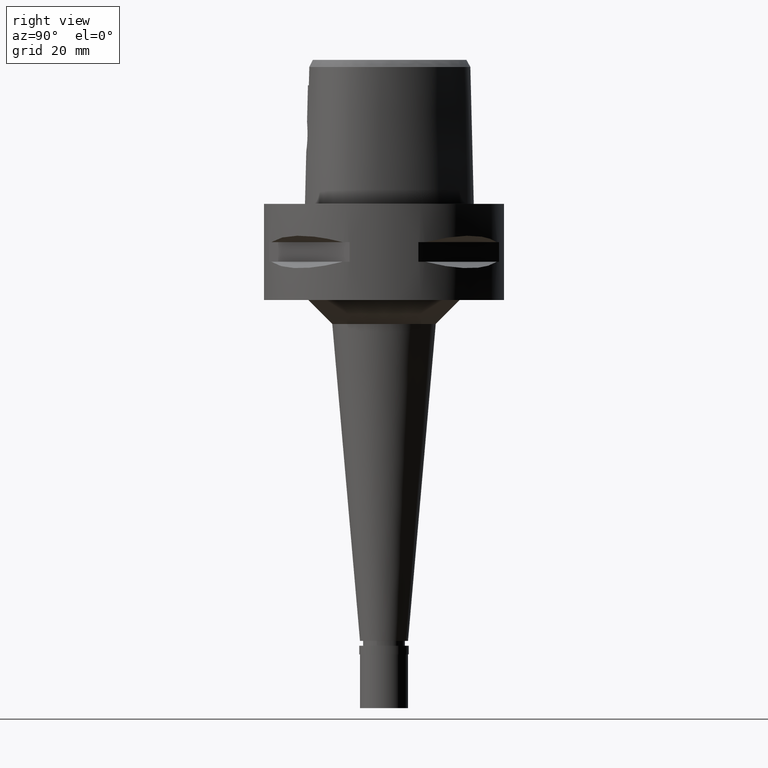
[diagram: clean part render]
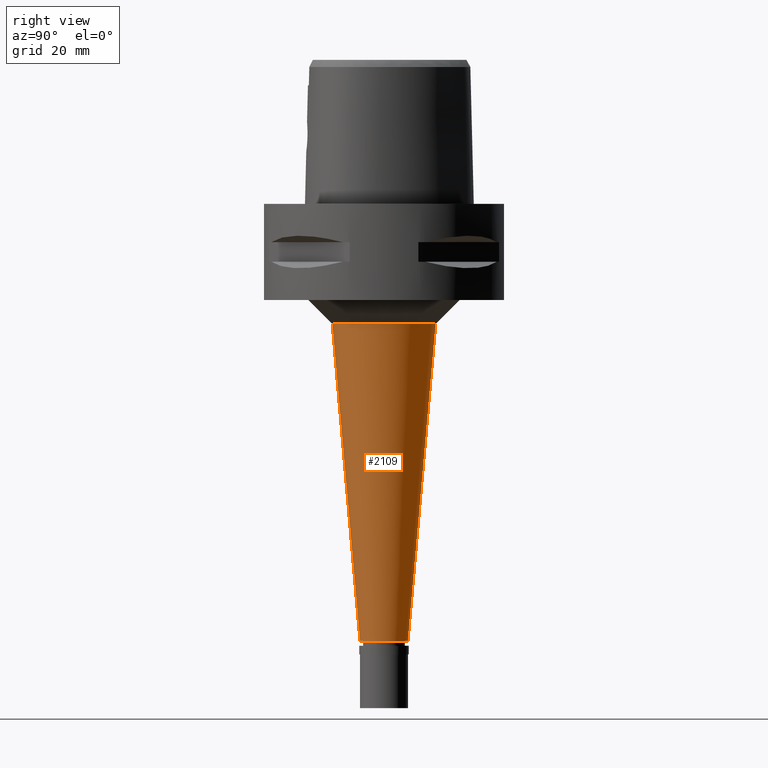
[diagram: same view with one face highlighted and labeled with its STEP entity id]
A machine part, right view. The second image highlights one B-rep face of the part: STEP entity #2109.
In plain terms, the highlighted conical surface has half-angle 5 deg.
Its self-contained STEP definition (entity closure, byte-faithful):
#105 = DIRECTION ( 'NONE',  ( 0.0000000000000000000, 0.0000000000000000000, 1.000000000000000000 ) ) ;
#118 = ORIENTED_EDGE ( 'NONE', *, *, #2079, .T. ) ;
#356 = LINE ( 'NONE', #1846, #1544 ) ;
#364 = ORIENTED_EDGE ( 'NONE', *, *, #2021, .F. ) ;
#384 = CARTESIAN_POINT ( 'NONE',  ( 0.0000000000000000000, -5.000000000000000000, -91.00000000000000000 ) ) ;
#490 = AXIS2_PLACEMENT_3D ( 'NONE', #3827, #4556, #1660 ) ;
#728 = ORIENTED_EDGE ( 'NONE', *, *, #3278, .F. ) ;
#816 = CARTESIAN_POINT ( 'NONE',  ( 0.0000000000000000000, 0.0000000000000000000, -25.00000000000000000 ) ) ;
#836 = DIRECTION ( 'NONE',  ( 0.0000000000000000000, -1.000000000000000000, 0.0000000000000000000 ) ) ;
#1162 = VERTEX_POINT ( 'NONE', #384 ) ;
#1317 = VECTOR ( 'NONE', #4581, 1000.000000000000000 ) ;
#1544 = VECTOR ( 'NONE', #1868, 1000.000000000000000 ) ;
#1660 = DIRECTION ( 'NONE',  ( 0.0000000000000000000, 1.000000000000000000, 0.0000000000000000000 ) ) ;
#1697 = CARTESIAN_POINT ( 'NONE',  ( 0.0000000000000000000, 5.000000000000000000, -91.00000000000000000 ) ) ;
#1722 = CARTESIAN_POINT ( 'NONE',  ( 0.0000000000000000000, -10.77425179271000033, -25.00000000000000000 ) ) ;
#1765 = VERTEX_POINT ( 'NONE', #2138 ) ;
#1846 = CARTESIAN_POINT ( 'NONE',  ( 0.0000000000000000000, 10.77425179271000033, -25.00000000000000000 ) ) ;
#1868 = DIRECTION ( 'NONE',  ( 0.0000000000000000000, -0.08715574274765398866, -0.9961946980917458783 ) ) ;
#1886 = CIRCLE ( 'NONE', #4743, 10.77425179271000033 ) ;
#2021 = EDGE_CURVE ( 'NONE', #1765, #2681, #1886, .T. ) ;
#2079 = EDGE_CURVE ( 'NONE', #1162, #2718, #3309, .T. ) ;
#2109 = ADVANCED_FACE ( 'NONE', ( #3921 ), #2590, .T. ) ;
#2138 = CARTESIAN_POINT ( 'NONE',  ( 0.0000000000000000000, -10.77425179271000033, -25.00000000000000000 ) ) ;
#2590 = CONICAL_SURFACE ( 'NONE', #490, 7.887125896355001053, 0.08726646259969973729 ) ;
#2681 = VERTEX_POINT ( 'NONE', #2794 ) ;
#2718 = VERTEX_POINT ( 'NONE', #1697 ) ;
#2794 = CARTESIAN_POINT ( 'NONE',  ( 0.0000000000000000000, 10.77425179271000033, -25.00000000000000000 ) ) ;
#3144 = AXIS2_PLACEMENT_3D ( 'NONE', #3457, #105, #4546 ) ;
#3278 = EDGE_CURVE ( 'NONE', #2681, #2718, #356, .T. ) ;
#3309 = CIRCLE ( 'NONE', #3144, 5.000000000000000000 ) ;
#3457 = CARTESIAN_POINT ( 'NONE',  ( 0.0000000000000000000, 0.0000000000000000000, -91.00000000000000000 ) ) ;
#3482 = ORIENTED_EDGE ( 'NONE', *, *, #4492, .T. ) ;
#3532 = EDGE_LOOP ( 'NONE', ( #364, #3482, #118, #728 ) ) ;
#3541 = LINE ( 'NONE', #1722, #1317 ) ;
#3827 = CARTESIAN_POINT ( 'NONE',  ( 0.0000000000000000000, 0.0000000000000000000, -58.00000000000000000 ) ) ;
#3921 = FACE_OUTER_BOUND ( 'NONE', #3532, .T. ) ;
#4093 = DIRECTION ( 'NONE',  ( 0.0000000000000000000, 0.0000000000000000000, 1.000000000000000000 ) ) ;
#4492 = EDGE_CURVE ( 'NONE', #1765, #1162, #3541, .T. ) ;
#4546 = DIRECTION ( 'NONE',  ( 0.0000000000000000000, -1.000000000000000000, 0.0000000000000000000 ) ) ;
#4556 = DIRECTION ( 'NONE',  ( 0.0000000000000000000, 0.0000000000000000000, 1.000000000000000000 ) ) ;
#4581 = DIRECTION ( 'NONE',  ( 0.0000000000000000000, 0.08715574274765398866, -0.9961946980917458783 ) ) ;
#4743 = AXIS2_PLACEMENT_3D ( 'NONE', #816, #4093, #836 ) ;